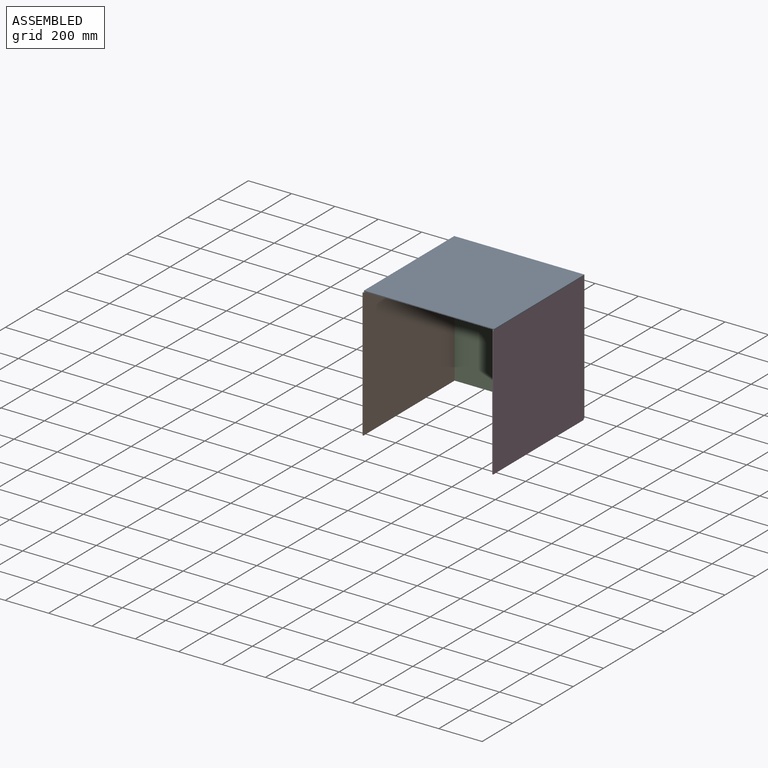
[diagram: assembled view]
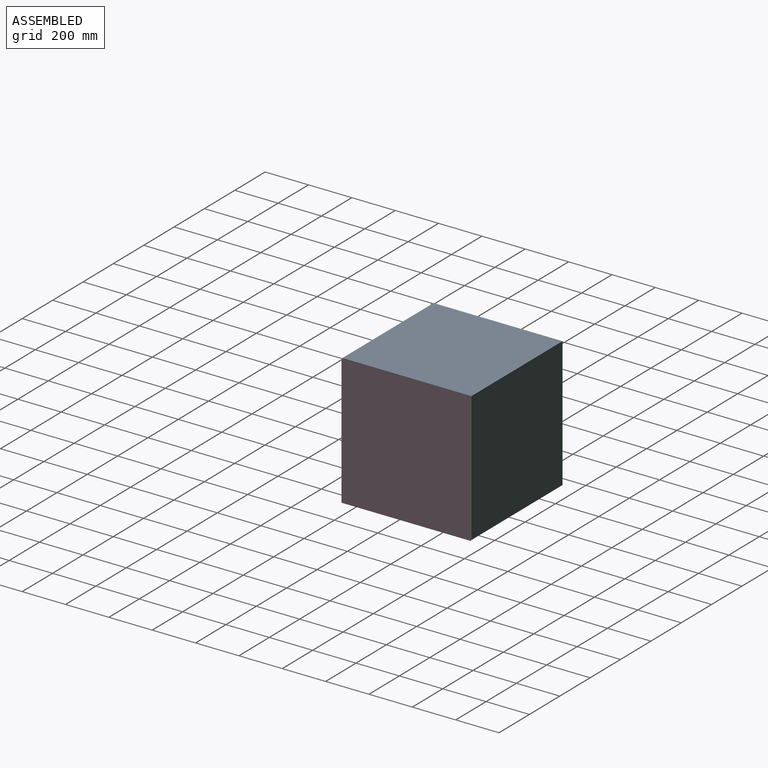
[diagram: assembled view, second angle]
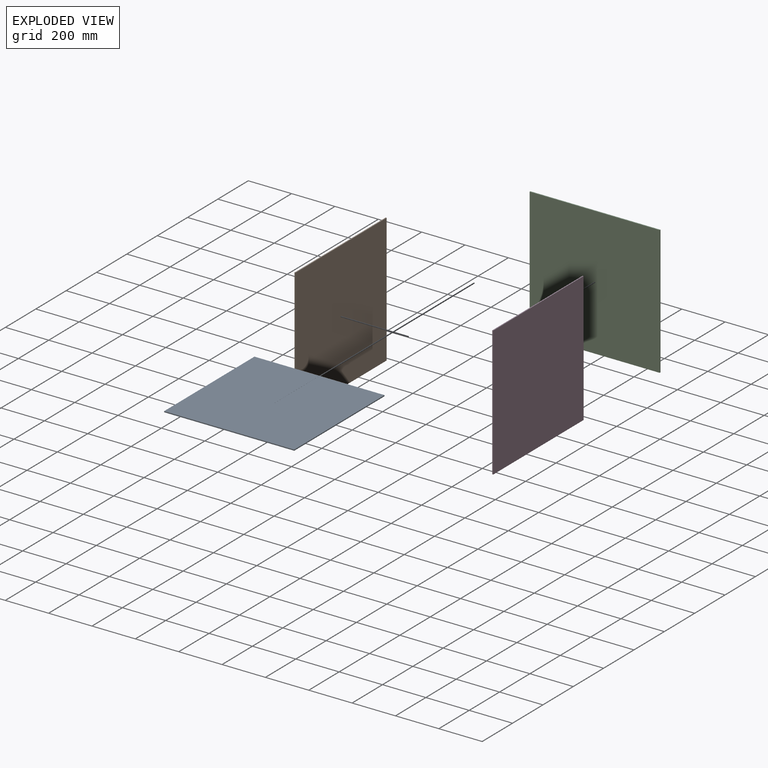
[diagram: exploded view]
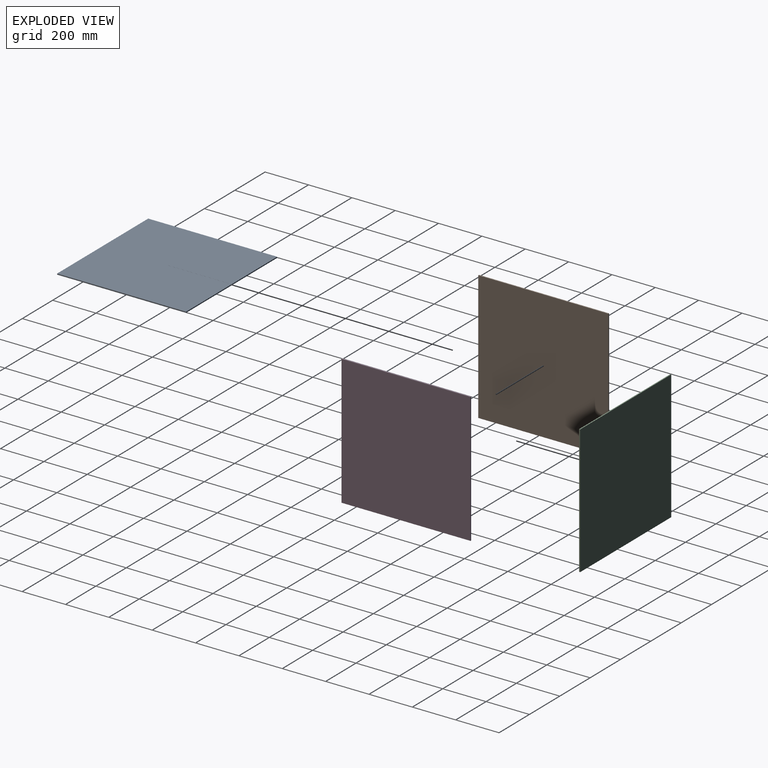
[diagram: exploded view, second angle]
ASSEMBLY  parts=4 mates=3
PART A: 6 faces, bbox 600x595x4.8 mm
  f0: plane 600x4.75mm, normal (0,-1,0), area 2850mm2, adj f1,f3,f4,f5
  f1: plane 595x4.75mm, normal (1,0,0), area 2826.2mm2, adj f0,f2,f4,f5
  f2: plane 600x4.75mm, normal (0,1,0), area 2850mm2, adj f1,f3,f4,f5
  f3: plane 595x4.75mm, normal (-1,0,0), area 2826.2mm2, adj f0,f2,f4,f5
  f4: plane 600x595mm, normal (0,0,1), area 357000mm2, adj f0,f1,f2,f3
  f5: plane 600x595mm, normal (0,0,-1), area 357000mm2, adj f0,f1,f2,f3
PART B: same geometry as A
PART C: same geometry as A
PART D: same geometry as A
PLACE A t=(-15.4,-745.74,730.85)mm
PLACE B rot(axis=(0.58,0.58,0.58),120deg) t=(-315.4,-752.99,433.35)mm
PLACE C rot(axis=(1,0,0),90deg) t=(-15.4,-448.24,433.35)mm
PLACE D rot(axis=(0,-1,0),90deg) t=(284.6,-750.49,430.85)mm
MATE fastened D.f5 <-> C.f1  axis (1,0,0) through (284.6,-452.99,730.85)mm
MATE fastened B.f5 <-> C.f3  axis (-1,0,0) through (-315.4,-452.99,730.85)mm
MATE fastened C.f5 <-> A.f2  axis (0,1,0) through (-315.4,-448.24,730.85)mm
